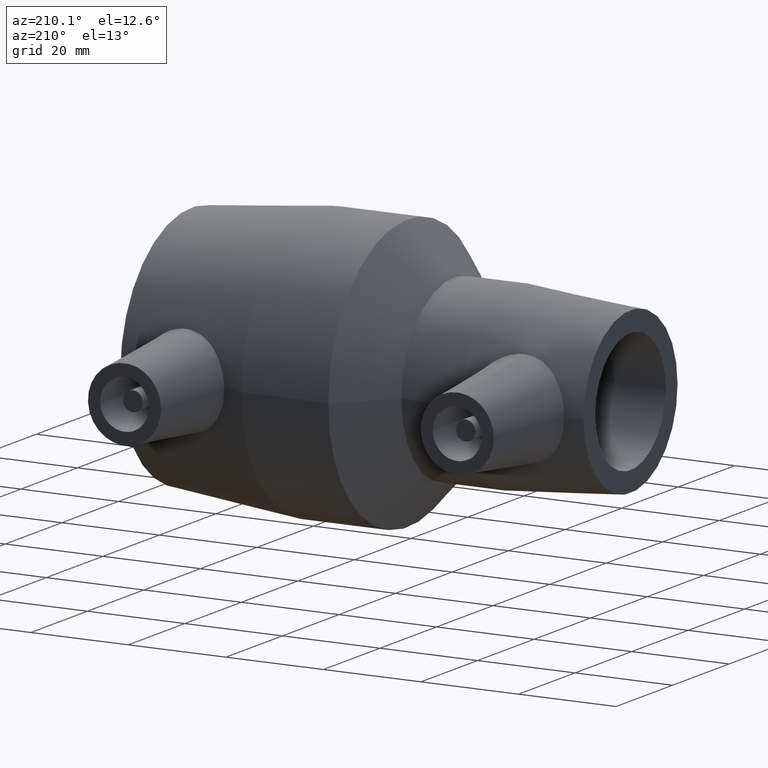
[diagram: clean part render]
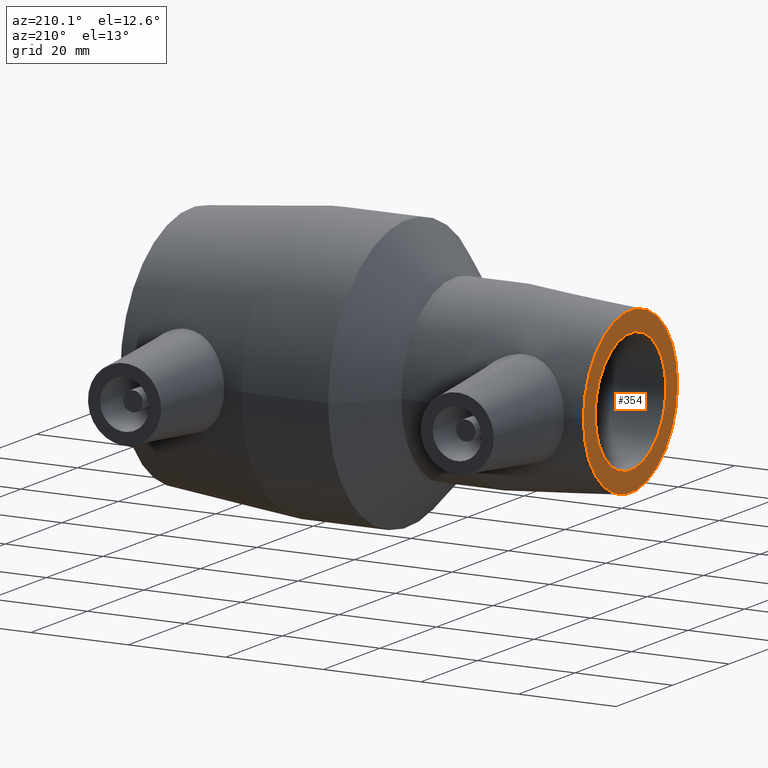
[diagram: same view with one face highlighted and labeled with its STEP entity id]
A machine part, auxiliary view. The second image highlights one B-rep face of the part: STEP entity #354.
In plain terms, the highlighted planar face has unit normal (-1, -0, 0).
Its self-contained STEP definition (entity closure, byte-faithful):
#53=FACE_BOUND('',#156,.T.);
#96=FACE_OUTER_BOUND('',#155,.T.);
#155=EDGE_LOOP('',(#308));
#156=EDGE_LOOP('',(#309));
#187=CIRCLE('',#414,12.5);
#188=CIRCLE('',#416,16.65);
#218=VERTEX_POINT('',#698);
#219=VERTEX_POINT('',#701);
#249=EDGE_CURVE('',#218,#218,#187,.T.);
#250=EDGE_CURVE('',#219,#219,#188,.T.);
#308=ORIENTED_EDGE('',*,*,#250,.F.);
#309=ORIENTED_EDGE('',*,*,#249,.T.);
#324=PLANE('',#415);
#354=ADVANCED_FACE('',(#96,#53),#324,.T.);
#414=AXIS2_PLACEMENT_3D('',#699,#532,#533);
#415=AXIS2_PLACEMENT_3D('',#700,#534,#535);
#416=AXIS2_PLACEMENT_3D('',#702,#536,#537);
#532=DIRECTION('center_axis',(1.,1.83697019872103E-16,0.));
#533=DIRECTION('ref_axis',(0.,0.,-1.));
#534=DIRECTION('center_axis',(-1.,-1.83697019872103E-16,0.));
#535=DIRECTION('ref_axis',(0.,0.,1.));
#536=DIRECTION('center_axis',(1.,1.83697019872103E-16,0.));
#537=DIRECTION('ref_axis',(0.,0.,-1.));
#698=CARTESIAN_POINT('',(-45.,12.5,0.));
#699=CARTESIAN_POINT('Origin',(-45.,7.39557098644699E-31,0.));
#700=CARTESIAN_POINT('Origin',(-45.,16.65,0.));
#701=CARTESIAN_POINT('',(-45.,16.65,0.));
#702=CARTESIAN_POINT('Origin',(-45.,7.39557098644699E-31,0.));